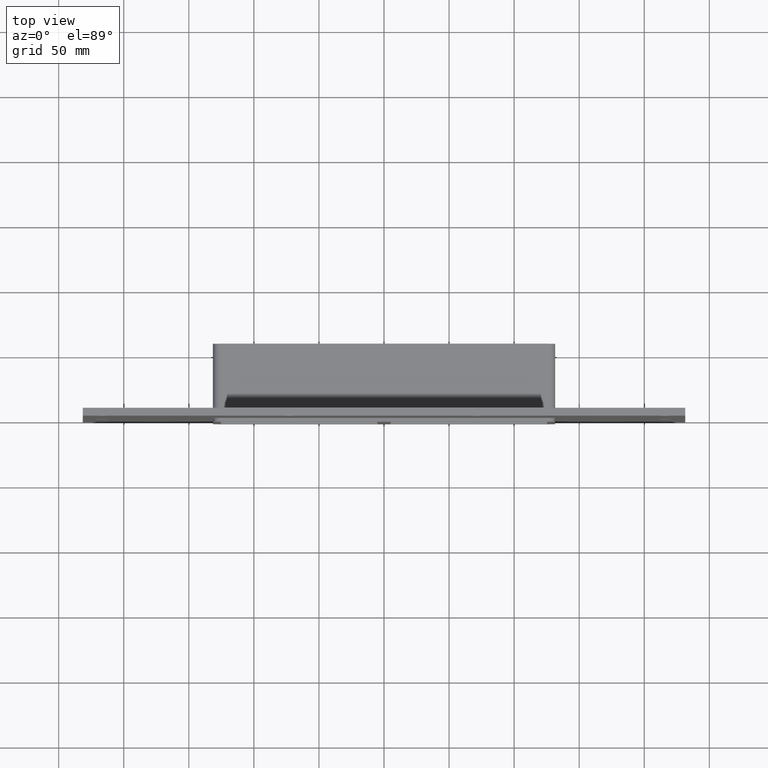
[diagram: clean part render]
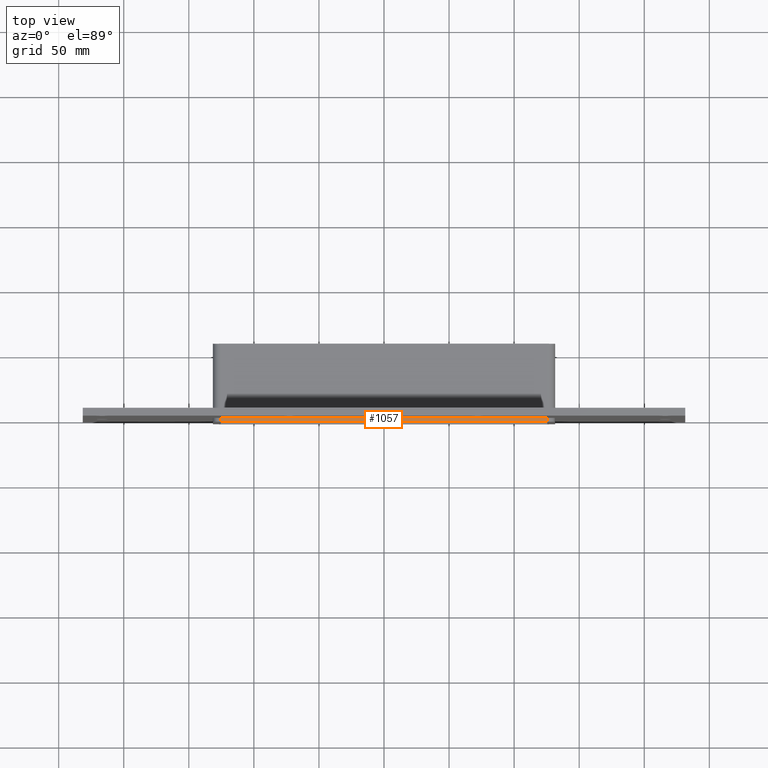
[diagram: same view with one face highlighted and labeled with its STEP entity id]
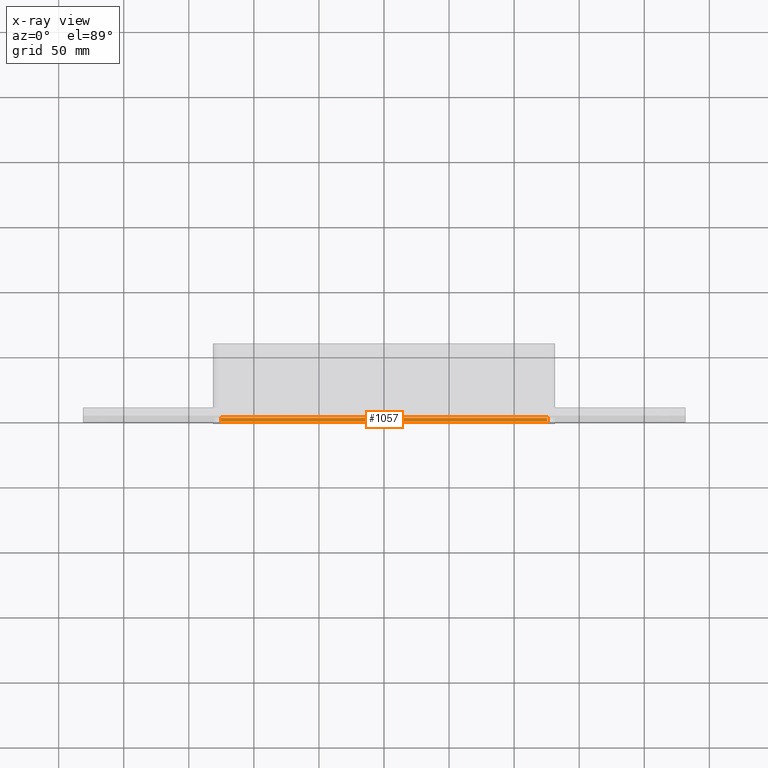
[diagram: x-ray of the same camera — body ghosted, the highlighted face saturated]
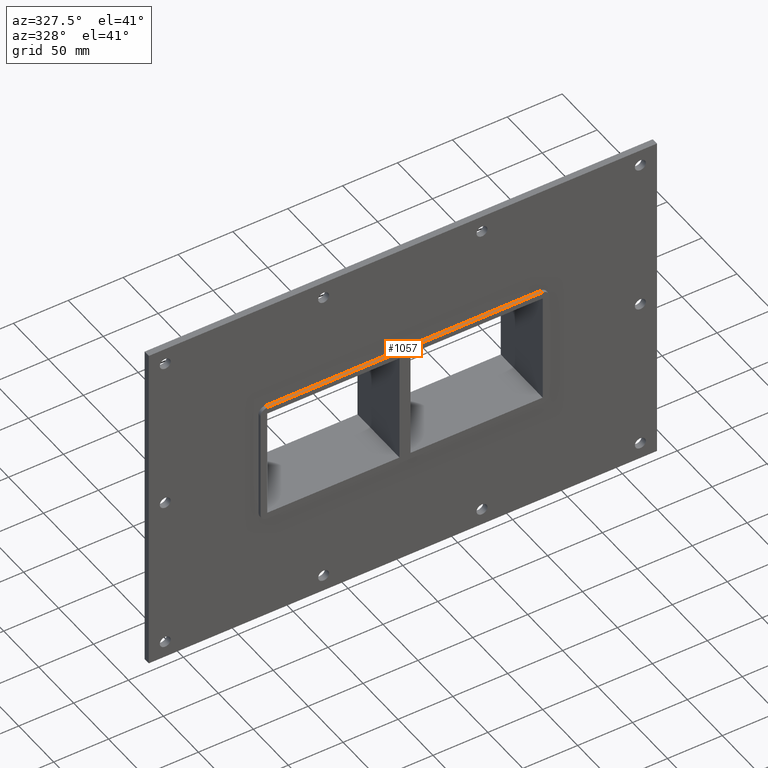
[diagram: same view with one face highlighted and labeled with its STEP entity id]
A machine part, top view. The second image highlights one B-rep face of the part: STEP entity #1057.
The next image is the same camera in x-ray: the body ghosted, the highlighted face saturated — about 0% of this face is hidden behind the body in this view.
A second angle (auxiliary view) of the same face is appended — the face is thin or edge-on in the first view.
In plain terms, the highlighted planar face has unit normal (0, 0, 1).
Its self-contained STEP definition (entity closure, byte-faithful):
#780=CARTESIAN_POINT('',(-125.5,0.0,56.5));
#781=VERTEX_POINT('',#780);
#789=CARTESIAN_POINT('',(125.5,0.0,56.5));
#790=VERTEX_POINT('',#789);
#791=CARTESIAN_POINT('',(125.5,0.0,56.5));
#792=DIRECTION('',(-1.0,0.0,0.0));
#793=VECTOR('',#792,251.0);
#794=LINE('',#791,#793);
#795=EDGE_CURVE('',#790,#781,#794,.T.);
#928=CARTESIAN_POINT('',(125.50000000000003,-3.0,56.5));
#929=VERTEX_POINT('',#928);
#930=CARTESIAN_POINT('',(125.5,0.0,56.5));
#931=DIRECTION('',(0.0,-1.0,0.0));
#932=VECTOR('',#931,3.0);
#933=LINE('',#930,#932);
#934=EDGE_CURVE('',#790,#929,#933,.T.);
#1034=CARTESIAN_POINT('',(-131.5,0.0,56.5));
#1035=DIRECTION('',(0.0,0.0,1.0));
#1036=DIRECTION('',(1.0,0.0,0.0));
#1037=AXIS2_PLACEMENT_3D('',#1034,#1035,#1036);
#1038=PLANE('',#1037);
#1039=ORIENTED_EDGE('',*,*,#795,.T.);
#1040=CARTESIAN_POINT('',(-125.5,-3.0,56.5));
#1041=VERTEX_POINT('',#1040);
#1042=CARTESIAN_POINT('',(-125.5,-3.0,56.5));
#1043=DIRECTION('',(0.0,1.0,0.0));
#1044=VECTOR('',#1043,3.0);
#1045=LINE('',#1042,#1044);
#1046=EDGE_CURVE('',#1041,#781,#1045,.T.);
#1047=ORIENTED_EDGE('',*,*,#1046,.F.);
#1048=CARTESIAN_POINT('',(125.5,-3.0,56.5));
#1049=DIRECTION('',(-1.0,0.0,0.0));
#1050=VECTOR('',#1049,251.0);
#1051=LINE('',#1048,#1050);
#1052=EDGE_CURVE('',#929,#1041,#1051,.T.);
#1053=ORIENTED_EDGE('',*,*,#1052,.F.);
#1054=ORIENTED_EDGE('',*,*,#934,.F.);
#1055=EDGE_LOOP('',(#1039,#1047,#1053,#1054));
#1056=FACE_OUTER_BOUND('',#1055,.T.);
#1057=ADVANCED_FACE('',(#1056),#1038,.T.);